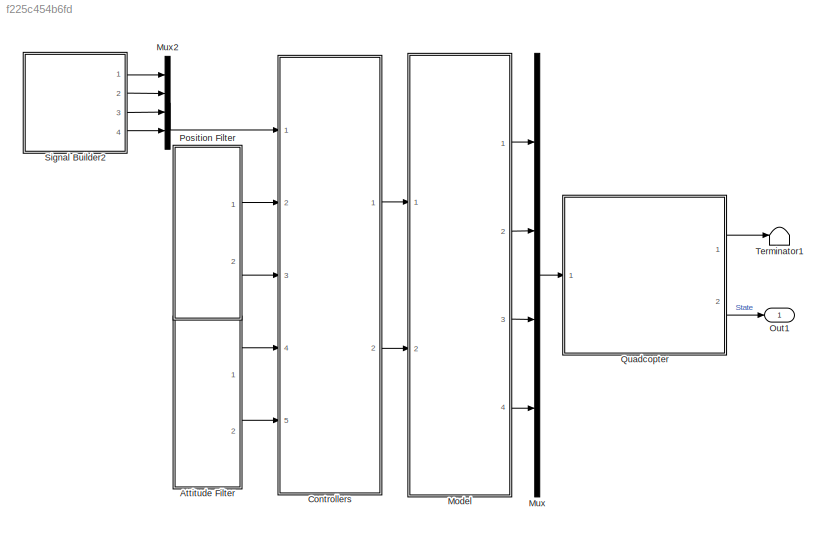
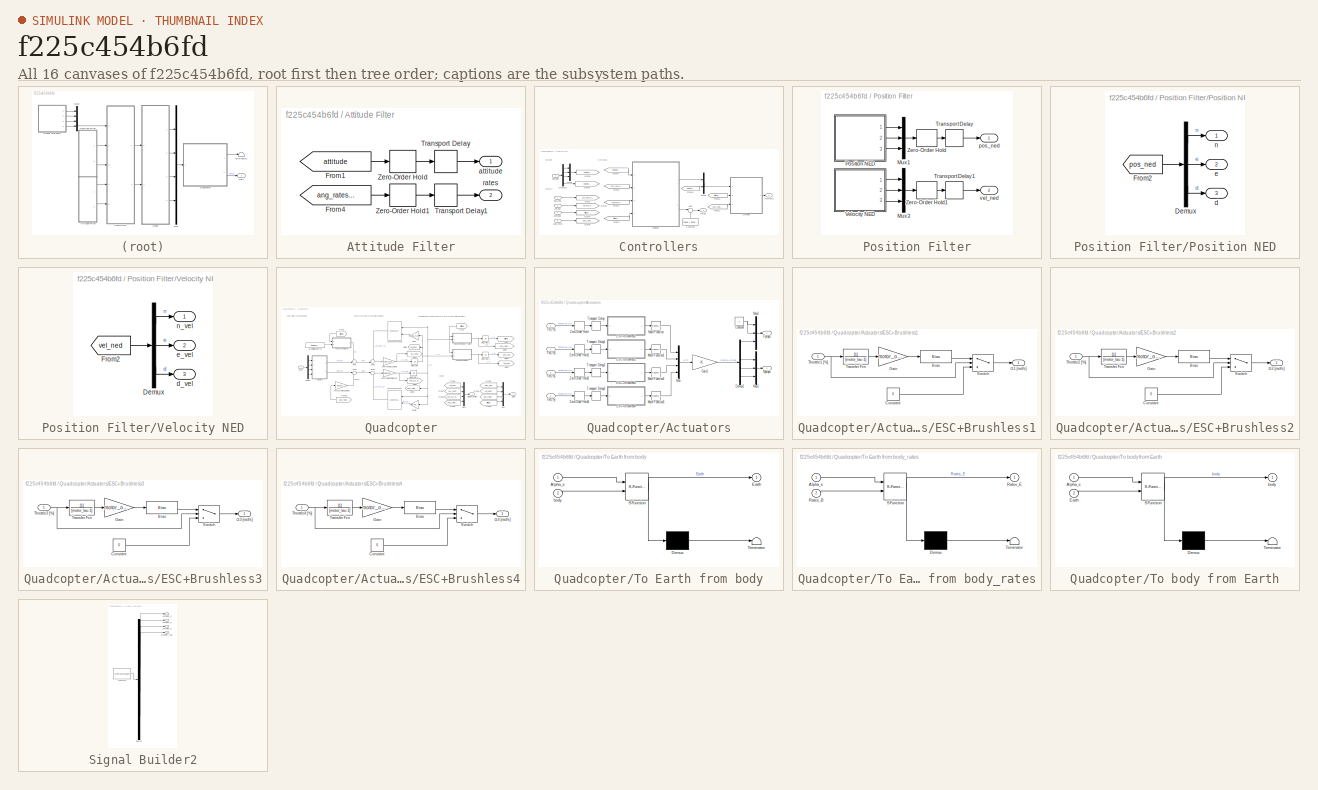
[diagram: thumbnail index - all 16 canvases of the model, root first then tree order]
MODEL slx_f225c454b6fd
KIND model
CONFIG AbsTol = auto
CONFIG EnableMultiTasking = on
CONFIG FixedStep = auto
CONFIG InitFcn = Parameters_quadrotor
CONFIG MaxStep = auto
CONFIG MinStep = auto
CONFIG RelTol = 1e-3
CONFIG SampleTimeConstraint = Unconstrained
CONFIG Solver = VariableStepAuto
CONFIG SolverName = VariableStepAuto
CONFIG StartTime = 0.0
CONFIG StopTime = simulation_time
BLOCK [SubSystem] Attitude Filter
  Ports = [0, 2]
  RequestExecContextInheritance = off
  Variant = off
BLOCK [From] Attitude Filter/From1
  GotoTag = attitude
  TagVisibility = global
BLOCK [From] Attitude Filter/From4
  GotoTag = ang_rates_body
  TagVisibility = global
BLOCK [TransportDelay] Attitude Filter/Transport Delay
  DelayTime = delay_attitude * sample_time
  Ports = [1, 1]
BLOCK [TransportDelay] Attitude Filter/Transport Delay1
  DelayTime = delay_attitude * sample_time
  Ports = [1, 1]
BLOCK [ZeroOrderHold] Attitude Filter/Zero-Order Hold
  SampleTime = sample_time
BLOCK [ZeroOrderHold] Attitude Filter/Zero-Order Hold1
  SampleTime = sample_time
BLOCK [Outport] Attitude Filter/attitude
  IconDisplay = Port number
  PortDimensions = 3
BLOCK [Outport] Attitude Filter/rates
  IconDisplay = Port number
  Port = 2
  PortDimensions = 3
BLOCK [SubSystem] Controllers
  Ports = [5, 2]
  RequestExecContextInheritance = off
  Variant = off
BLOCK [ModelReference] Controllers/Attitude
  ModelNameDialog = Attitude.slx
  ModelReferenceVersion = 1.162
  Ports = [3, 1]
  Variant = off
BLOCK [Constant] Controllers/Constant
  Value = mass * gravity
BLOCK [Demux] Controllers/Demux1
  DisplayOption = bar
  Ports = [1, 4]
BLOCK [From] Controllers/From1
  GotoTag = ang_rates_est
BLOCK [From] Controllers/From2
  GotoTag = attitude_est
BLOCK [From] Controllers/From3
  GotoTag = attitude_est
BLOCK [From] Controllers/From4
  GotoTag = vel_ned_est
BLOCK [From] Controllers/From5
  GotoTag = pos_ned_est
BLOCK [From] Controllers/From8
  GotoTag = setpoint_yaw
BLOCK [From] Controllers/From9
  GotoTag = setpoint_pos_ned
BLOCK [Goto] Controllers/Goto
  GotoTag = pos_ned_est
BLOCK [Goto] Controllers/Goto1
  GotoTag = vel_ned_est
BLOCK [Goto] Controllers/Goto4
  GotoTag = attitude_est
BLOCK [Goto] Controllers/Goto5
  GotoTag = ang_rates_est
BLOCK [Goto] Controllers/Goto6
  GotoTag = setpoint_pos_ned
BLOCK [Goto] Controllers/Goto7
  GotoTag = setpoint_yaw
BLOCK [Mux] Controllers/Mux1
  DisplayOption = bar
  Inputs = 3
  Ports = [3, 1]
BLOCK [Mux] Controllers/Mux8
  DisplayOption = bar
  Inputs = 2
  Ports = [2, 1]
BLOCK [ModelReference] Controllers/Position
  ModelNameDialog = Position.slx
  ModelReferenceVersion = 1.303
  Ports = [4, 2]
  Variant = off
BLOCK [Sum] Controllers/Sum
  IconShape = round
  InputSameDT = off
  Inputs = |+-
  OutDataTypeStr = Inherit: Inherit via internal rule
  Ports = [2, 1]
  SaturateOnIntegerOverflow = off
BLOCK [Inport] Controllers/ang_rates
  IconDisplay = Port number
  Port = 5
  PortDimensions = 3
BLOCK [Inport] Controllers/attitude
  IconDisplay = Port number
  Port = 4
  PortDimensions = 3
BLOCK [Outport] Controllers/moments
  IconDisplay = Port number
  Port = 2
  PortDimensions = 3
BLOCK [Inport] Controllers/pos_ned
  IconDisplay = Port number
  Port = 2
  PortDimensions = 3
BLOCK [Inport] Controllers/setpoint
  IconDisplay = Port number
  PortDimensions = 4
BLOCK [Outport] Controllers/thrust
  IconDisplay = Port number
BLOCK [Inport] Controllers/vel_ned
  IconDisplay = Port number
  Port = 3
  PortDimensions = 3
BLOCK [ModelReference] Model
  ModelNameDialog = Mixer.slx
  ModelReferenceVersion = 1.35
  Ports = [2, 4]
  Variant = off
BLOCK [Mux] Mux
  DisplayOption = bar
  Ports = [4, 1]
BLOCK [Mux] Mux2
  DisplayOption = bar
  Ports = [4, 1]
BLOCK [Outport] Out1
  IconDisplay = Port number
BLOCK [SubSystem] Position Filter
  Ports = [0, 2]
  RequestExecContextInheritance = off
  Variant = off
BLOCK [Mux] Position Filter/Mux1
  DisplayOption = bar
  Inputs = 3
  Ports = [3, 1]
BLOCK [Mux] Position Filter/Mux3
  DisplayOption = bar
  Inputs = 3
  Ports = [3, 1]
BLOCK [SubSystem] Position Filter/Position NED
  Ports = [0, 3]
  RequestExecContextInheritance = off
  Variant = off
BLOCK [Demux] Position Filter/Position NED/Demux
  DisplayOption = bar
  Outputs = 3
  Ports = [1, 3]
BLOCK [From] Position Filter/Position NED/From2
  GotoTag = pos_ned
  TagVisibility = global
BLOCK [Outport] Position Filter/Position NED/d
  IconDisplay = Port number
  Port = 3
BLOCK [Outport] Position Filter/Position NED/e
  IconDisplay = Port number
  Port = 2
BLOCK [Outport] Position Filter/Position NED/n
  IconDisplay = Port number
BLOCK [TransportDelay] Position Filter/Transport Delay
  DelayTime = delay_position * sample_time
  Ports = [1, 1]
BLOCK [TransportDelay] Position Filter/Transport Delay1
  DelayTime = delay_position * sample_time
  Ports = [1, 1]
BLOCK [SubSystem] Position Filter/Velocity NED
  Ports = [0, 3]
  RequestExecContextInheritance = off
  Variant = off
BLOCK [Demux] Position Filter/Velocity NED/Demux
  DisplayOption = bar
  Outputs = 3
  Ports = [1, 3]
BLOCK [From] Position Filter/Velocity NED/From2
  GotoTag = vel_ned
  TagVisibility = global
BLOCK [Outport] Position Filter/Velocity NED/d_vel
  IconDisplay = Port number
  Port = 3
BLOCK [Outport] Position Filter/Velocity NED/e_vel
  IconDisplay = Port number
  Port = 2
BLOCK [Outport] Position Filter/Velocity NED/n_vel
  IconDisplay = Port number
BLOCK [ZeroOrderHold] Position Filter/Zero-Order Hold
  SampleTime = sample_time
BLOCK [ZeroOrderHold] Position Filter/Zero-Order Hold1
  SampleTime = sample_time
BLOCK [Outport] Position Filter/pos_ned
  IconDisplay = Port number
  PortDimensions = 3
BLOCK [Outport] Position Filter/vel_ned
  IconDisplay = Port number
  Port = 2
  PortDimensions = 3
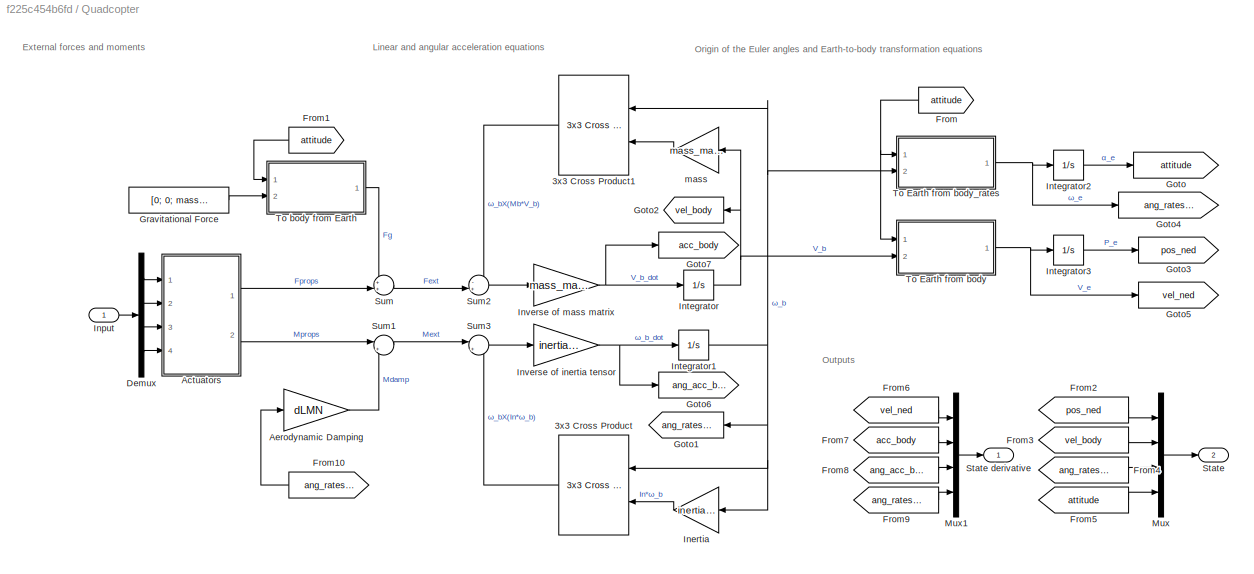
BLOCK [SubSystem] Quadcopter
  Ports = [1, 2]
  RequestExecContextInheritance = off
  Variant = off
BLOCK [Reference] Quadcopter/3x3 Cross Product  REF=aerolibutil/3x3 Cross Product
  Ports = [2, 1]
  SourceBlock = aerolibutil/3x3 Cross Product
  SourceType = CrossProduct
BLOCK [Reference] Quadcopter/3x3 Cross Product1  REF=aerolibutil/3x3 Cross Product
  Ports = [2, 1]
  SourceBlock = aerolibutil/3x3 Cross Product
  SourceType = CrossProduct
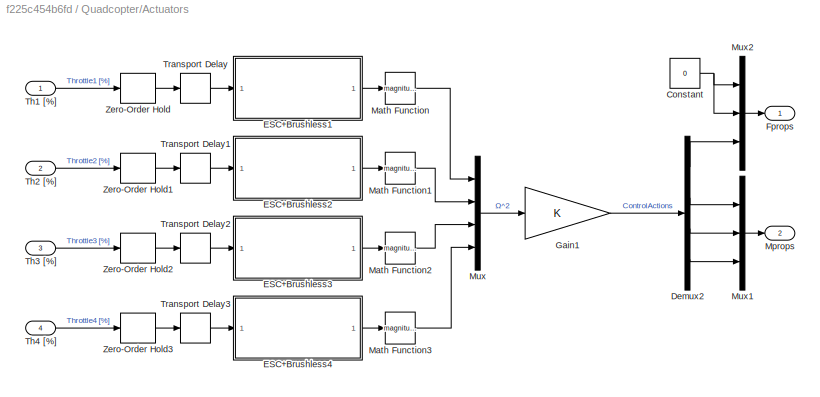
BLOCK [SubSystem] Quadcopter/Actuators
  Ports = [4, 2]
  RequestExecContextInheritance = off
  Variant = off
BLOCK [Constant] Quadcopter/Actuators/Constant
  Value = 0
BLOCK [Demux] Quadcopter/Actuators/Demux2
  DisplayOption = bar
  Ports = [1, 4]
BLOCK [SubSystem] Quadcopter/Actuators/ESC+Brushless1
  Ports = [1, 1]
  RequestExecContextInheritance = off
  Variant = off
BLOCK [Bias] Quadcopter/Actuators/ESC+Brushless1/Bias
  Bias = motor_ome_vs_throttle(2)
  SaturateOnIntegerOverflow = off
BLOCK [Constant] Quadcopter/Actuators/ESC+Brushless1/Constant
  Value = 0
BLOCK [Gain] Quadcopter/Actuators/ESC+Brushless1/Gain
  Gain = motor_ome_vs_throttle(1)
  OutDataTypeStr = Inherit: Inherit via internal rule
  ParamDataTypeStr = Inherit: Inherit via internal rule
  SaturateOnIntegerOverflow = off
BLOCK [Switch] Quadcopter/Actuators/ESC+Brushless1/Switch
  Criteria = u2 > Threshold
  InputSameDT = off
  SaturateOnIntegerOverflow = off
BLOCK [Inport] Quadcopter/Actuators/ESC+Brushless1/Throttle1 [%]
  IconDisplay = Port number
BLOCK [TransferFcn] Quadcopter/Actuators/ESC+Brushless1/Transfer Fcn
  Denominator = [motor_tau 1]
BLOCK [Outport] Quadcopter/Actuators/ESC+Brushless1/Ω1 [rad//s]
  IconDisplay = Port number
BLOCK [SubSystem] Quadcopter/Actuators/ESC+Brushless2
  Ports = [1, 1]
  RequestExecContextInheritance = off
  Variant = off
BLOCK [Bias] Quadcopter/Actuators/ESC+Brushless2/Bias
  Bias = motor_ome_vs_throttle(2)
  SaturateOnIntegerOverflow = off
BLOCK [Constant] Quadcopter/Actuators/ESC+Brushless2/Constant
  Value = 0
BLOCK [Gain] Quadcopter/Actuators/ESC+Brushless2/Gain
  Gain = motor_ome_vs_throttle(1)
  OutDataTypeStr = Inherit: Inherit via internal rule
  ParamDataTypeStr = Inherit: Inherit via internal rule
  SaturateOnIntegerOverflow = off
BLOCK [Switch] Quadcopter/Actuators/ESC+Brushless2/Switch
  Criteria = u2 > Threshold
  InputSameDT = off
  SaturateOnIntegerOverflow = off
BLOCK [Inport] Quadcopter/Actuators/ESC+Brushless2/Throttle2 [%]
  IconDisplay = Port number
BLOCK [TransferFcn] Quadcopter/Actuators/ESC+Brushless2/Transfer Fcn
  Denominator = [motor_tau 1]
BLOCK [Outport] Quadcopter/Actuators/ESC+Brushless2/Ω2 [rad//s]
  IconDisplay = Port number
BLOCK [SubSystem] Quadcopter/Actuators/ESC+Brushless3
  Ports = [1, 1]
  RequestExecContextInheritance = off
  Variant = off
BLOCK [Bias] Quadcopter/Actuators/ESC+Brushless3/Bias
  Bias = motor_ome_vs_throttle(2)
  SaturateOnIntegerOverflow = off
BLOCK [Constant] Quadcopter/Actuators/ESC+Brushless3/Constant
  Value = 0
BLOCK [Gain] Quadcopter/Actuators/ESC+Brushless3/Gain
  Gain = motor_ome_vs_throttle(1)
  OutDataTypeStr = Inherit: Inherit via internal rule
  ParamDataTypeStr = Inherit: Inherit via internal rule
  SaturateOnIntegerOverflow = off
BLOCK [Switch] Quadcopter/Actuators/ESC+Brushless3/Switch
  Criteria = u2 > Threshold
  InputSameDT = off
  SaturateOnIntegerOverflow = off
BLOCK [Inport] Quadcopter/Actuators/ESC+Brushless3/Throttle3 [%]
  IconDisplay = Port number
BLOCK [TransferFcn] Quadcopter/Actuators/ESC+Brushless3/Transfer Fcn
  Denominator = [motor_tau 1]
BLOCK [Outport] Quadcopter/Actuators/ESC+Brushless3/Ω3 [rad//s]
  IconDisplay = Port number
BLOCK [SubSystem] Quadcopter/Actuators/ESC+Brushless4
  Ports = [1, 1]
  RequestExecContextInheritance = off
  Variant = off
BLOCK [Bias] Quadcopter/Actuators/ESC+Brushless4/Bias
  Bias = motor_ome_vs_throttle(2)
  SaturateOnIntegerOverflow = off
BLOCK [Constant] Quadcopter/Actuators/ESC+Brushless4/Constant
  Value = 0
BLOCK [Gain] Quadcopter/Actuators/ESC+Brushless4/Gain
  Gain = motor_ome_vs_throttle(1)
  OutDataTypeStr = Inherit: Inherit via internal rule
  ParamDataTypeStr = Inherit: Inherit via internal rule
  SaturateOnIntegerOverflow = off
BLOCK [Switch] Quadcopter/Actuators/ESC+Brushless4/Switch
  Criteria = u2 > Threshold
  InputSameDT = off
  SaturateOnIntegerOverflow = off
BLOCK [Inport] Quadcopter/Actuators/ESC+Brushless4/Throttle4 [%]
  IconDisplay = Port number
BLOCK [TransferFcn] Quadcopter/Actuators/ESC+Brushless4/Transfer Fcn
  Denominator = [motor_tau 1]
BLOCK [Outport] Quadcopter/Actuators/ESC+Brushless4/Ω4 [rad//s]
  IconDisplay = Port number
BLOCK [Outport] Quadcopter/Actuators/Fprops
  IconDisplay = Port number
BLOCK [Gain] Quadcopter/Actuators/Gain1
  Gain = K
  Multiplication = Matrix(K*u)
  OutDataTypeStr = Inherit: Inherit via internal rule
  ParamDataTypeStr = Inherit: Inherit via internal rule
  SaturateOnIntegerOverflow = off
BLOCK [Math] Quadcopter/Actuators/Math Function
  Operator = magnitude^2
  Ports = [1, 1]
BLOCK [Math] Quadcopter/Actuators/Math Function1
  Operator = magnitude^2
  Ports = [1, 1]
BLOCK [Math] Quadcopter/Actuators/Math Function2
  Operator = magnitude^2
  Ports = [1, 1]
BLOCK [Math] Quadcopter/Actuators/Math Function3
  Operator = magnitude^2
  Ports = [1, 1]
BLOCK [Outport] Quadcopter/Actuators/Mprops
  IconDisplay = Port number
  Port = 2
BLOCK [Mux] Quadcopter/Actuators/Mux
  DisplayOption = bar
  Ports = [4, 1]
BLOCK [Mux] Quadcopter/Actuators/Mux1
  DisplayOption = bar
  Inputs = 3
  Ports = [3, 1]
BLOCK [Mux] Quadcopter/Actuators/Mux2
  DisplayOption = bar
  Inputs = 3
  Ports = [3, 1]
BLOCK [Inport] Quadcopter/Actuators/Th1 [%]
  IconDisplay = Port number
BLOCK [Inport] Quadcopter/Actuators/Th2 [%]
  IconDisplay = Port number
  Port = 2
BLOCK [Inport] Quadcopter/Actuators/Th3 [%]
  IconDisplay = Port number
  Port = 3
BLOCK [Inport] Quadcopter/Actuators/Th4 [%]
  IconDisplay = Port number
  Port = 4
BLOCK [TransportDelay] Quadcopter/Actuators/Transport Delay
  DelayTime = delay_mixer * sample_time
  Ports = [1, 1]
BLOCK [TransportDelay] Quadcopter/Actuators/Transport Delay1
  DelayTime = delay_mixer * sample_time
  Ports = [1, 1]
BLOCK [TransportDelay] Quadcopter/Actuators/Transport Delay2
  DelayTime = delay_mixer * sample_time
  Ports = [1, 1]
BLOCK [TransportDelay] Quadcopter/Actuators/Transport Delay3
  DelayTime = delay_mixer * sample_time
  Ports = [1, 1]
BLOCK [ZeroOrderHold] Quadcopter/Actuators/Zero-Order Hold
  SampleTime = sample_time
BLOCK [ZeroOrderHold] Quadcopter/Actuators/Zero-Order Hold1
  SampleTime = sample_time
BLOCK [ZeroOrderHold] Quadcopter/Actuators/Zero-Order Hold2
  SampleTime = sample_time
BLOCK [ZeroOrderHold] Quadcopter/Actuators/Zero-Order Hold3
  SampleTime = sample_time
BLOCK [Gain] Quadcopter/Aerodynamic Damping
  Gain = dLMN
  Multiplication = Matrix(K*u)
  OutDataTypeStr = Inherit: Inherit via internal rule
  ParamDataTypeStr = Inherit: Inherit via internal rule
  SaturateOnIntegerOverflow = off
BLOCK [Demux] Quadcopter/Demux
  DisplayOption = bar
  Ports = [1, 4]
BLOCK [From] Quadcopter/From
  GotoTag = attitude
  TagVisibility = global
BLOCK [From] Quadcopter/From1
  GotoTag = attitude
  TagVisibility = global
BLOCK [From] Quadcopter/From10
  GotoTag = ang_rates_body
  TagVisibility = global
BLOCK [From] Quadcopter/From2
  GotoTag = pos_ned
  TagVisibility = global
BLOCK [From] Quadcopter/From3
  GotoTag = vel_body
  TagVisibility = global
BLOCK [From] Quadcopter/From4
  GotoTag = ang_rates_body
  TagVisibility = global
BLOCK [From] Quadcopter/From5
  GotoTag = attitude
  TagVisibility = global
BLOCK [From] Quadcopter/From6
  GotoTag = vel_ned
  TagVisibility = global
BLOCK [From] Quadcopter/From7
  GotoTag = acc_body
  TagVisibility = global
BLOCK [From] Quadcopter/From8
  GotoTag = ang_acc_body
  TagVisibility = global
BLOCK [From] Quadcopter/From9
  GotoTag = ang_rates_ned
  TagVisibility = global
BLOCK [Goto] Quadcopter/Goto
  GotoTag = attitude
  TagVisibility = global
BLOCK [Goto] Quadcopter/Goto1
  GotoTag = ang_rates_body
  TagVisibility = global
BLOCK [Goto] Quadcopter/Goto2
  GotoTag = vel_body
  TagVisibility = global
BLOCK [Goto] Quadcopter/Goto3
  GotoTag = pos_ned
  TagVisibility = global
BLOCK [Goto] Quadcopter/Goto4
  GotoTag = ang_rates_ned
  TagVisibility = global
BLOCK [Goto] Quadcopter/Goto5
  GotoTag = vel_ned
  TagVisibility = global
BLOCK [Goto] Quadcopter/Goto6
  GotoTag = ang_acc_body
  TagVisibility = global
BLOCK [Goto] Quadcopter/Goto7
  GotoTag = acc_body
  TagVisibility = global
BLOCK [Constant] Quadcopter/Gravitational Force
  Value = [0; 0; mass*gravity]
BLOCK [Gain] Quadcopter/Inertia
  Gain = inertia_tensor
  Multiplication = Matrix(K*u)
  OutDataTypeStr = Inherit: Inherit via internal rule
  ParamDataTypeStr = Inherit: Inherit via internal rule
  SaturateOnIntegerOverflow = off
BLOCK [Inport] Quadcopter/Input
  IconDisplay = Port number
BLOCK [Integrator] Quadcopter/Integrator
  InitialCondition = [0; 0; 0]
  Ports = [1, 1]
BLOCK [Integrator] Quadcopter/Integrator1
  InitialCondition = [0; 0; 0]
  Ports = [1, 1]
BLOCK [Integrator] Quadcopter/Integrator2
  InitialCondition = [0; 0; 0]
  Ports = [1, 1]
BLOCK [Integrator] Quadcopter/Integrator3
  InitialCondition = [0; 0; 0]
  Ports = [1, 1]
BLOCK [Gain] Quadcopter/Inverse of inertia tensor
  Gain = inertia_tensor_inv
  Multiplication = Matrix(K*u)
  OutDataTypeStr = Inherit: Inherit via internal rule
  ParamDataTypeStr = Inherit: Inherit via internal rule
  SaturateOnIntegerOverflow = off
BLOCK [Gain] Quadcopter/Inverse of mass matrix
  Gain = mass_matrix_inv
  Multiplication = Matrix(K*u)
  OutDataTypeStr = Inherit: Inherit via internal rule
  ParamDataTypeStr = Inherit: Inherit via internal rule
  SaturateOnIntegerOverflow = off
BLOCK [Mux] Quadcopter/Mux
  DisplayOption = bar
  Ports = [4, 1]
BLOCK [Mux] Quadcopter/Mux1
  DisplayOption = bar
  Ports = [4, 1]
BLOCK [Outport] Quadcopter/State
  IconDisplay = Port number
  Port = 2
BLOCK [Outport] Quadcopter/State derivative
  IconDisplay = Port number
BLOCK [Sum] Quadcopter/Sum
  IconShape = round
  InputSameDT = off
  Inputs = ++|
  OutDataTypeStr = Inherit: Inherit via internal rule
  Ports = [2, 1]
  SaturateOnIntegerOverflow = off
BLOCK [Sum] Quadcopter/Sum1
  IconShape = round
  InputSameDT = off
  Inputs = |++
  OutDataTypeStr = Inherit: Inherit via internal rule
  Ports = [2, 1]
  SaturateOnIntegerOverflow = off
BLOCK [Sum] Quadcopter/Sum2
  IconShape = round
  InputSameDT = off
  Inputs = -+|
  OutDataTypeStr = Inherit: Inherit via internal rule
  Ports = [2, 1]
  SaturateOnIntegerOverflow = off
BLOCK [Sum] Quadcopter/Sum3
  IconShape = round
  InputSameDT = off
  Inputs = |+-
  OutDataTypeStr = Inherit: Inherit via internal rule
  Ports = [2, 1]
  SaturateOnIntegerOverflow = off
BLOCK [SubSystem] Quadcopter/To Earth from body
  ErrorFcn = Stateflow.Translate.translate
  PermitHierarchicalResolution = ExplicitOnly
  Ports = [2, 1]
  RequestExecContextInheritance = off
  SFBlockType = MATLAB Function
  TreatAsAtomicUnit = on
  Variant = off
BLOCK [Demux] Quadcopter/To Earth from body/ Demux 
  Outputs = 1
  Ports = [1, 1]
BLOCK [S-Function] Quadcopter/To Earth from body/ SFunction 
  EnableBusSupport = on
  FunctionName = sf_sfun
  PortCounts = [2 2]
  Ports = [2, 2]
  SFcnIsStateOwnerBlock = off
  SFunctionDeploymentMode = off
  Tag = Stateflow S-Function Simulator 2
BLOCK [Terminator] Quadcopter/To Earth from body/ Terminator 
BLOCK [Inport] Quadcopter/To Earth from body/Alpha_e
  IconDisplay = Port number
BLOCK [Outport] Quadcopter/To Earth from body/Earth
  IconDisplay = Port number
BLOCK [Inport] Quadcopter/To Earth from body/body
  IconDisplay = Port number
  Port = 2
BLOCK [SubSystem] Quadcopter/To Earth from body_rates
  ErrorFcn = Stateflow.Translate.translate
  PermitHierarchicalResolution = ExplicitOnly
  Ports = [2, 1]
  RequestExecContextInheritance = off
  SFBlockType = MATLAB Function
  TreatAsAtomicUnit = on
  Variant = off
BLOCK [Demux] Quadcopter/To Earth from body_rates/ Demux 
  Outputs = 1
  Ports = [1, 1]
BLOCK [S-Function] Quadcopter/To Earth from body_rates/ SFunction 
  EnableBusSupport = on
  FunctionName = sf_sfun
  PortCounts = [2 2]
  Ports = [2, 2]
  SFcnIsStateOwnerBlock = off
  SFunctionDeploymentMode = off
  Tag = Stateflow S-Function Simulator 3
BLOCK [Terminator] Quadcopter/To Earth from body_rates/ Terminator 
BLOCK [Inport] Quadcopter/To Earth from body_rates/Alpha_e
  IconDisplay = Port number
BLOCK [Inport] Quadcopter/To Earth from body_rates/Rates_B
  IconDisplay = Port number
  Port = 2
BLOCK [Outport] Quadcopter/To Earth from body_rates/Rates_E
  IconDisplay = Port number
BLOCK [SubSystem] Quadcopter/To body from Earth
  ErrorFcn = Stateflow.Translate.translate
  PermitHierarchicalResolution = ExplicitOnly
  Ports = [2, 1]
  RequestExecContextInheritance = off
  SFBlockType = MATLAB Function
  TreatAsAtomicUnit = on
  Variant = off
BLOCK [Demux] Quadcopter/To body from Earth/ Demux 
  Outputs = 1
  Ports = [1, 1]
BLOCK [S-Function] Quadcopter/To body from Earth/ SFunction 
  EnableBusSupport = on
  FunctionName = sf_sfun
  PortCounts = [2 2]
  Ports = [2, 2]
  SFcnIsStateOwnerBlock = off
  SFunctionDeploymentMode = off
  Tag = Stateflow S-Function Simulator 1
BLOCK [Terminator] Quadcopter/To body from Earth/ Terminator 
BLOCK [Inport] Quadcopter/To body from Earth/Alpha_e
  IconDisplay = Port number
BLOCK [Inport] Quadcopter/To body from Earth/Earth
  IconDisplay = Port number
  Port = 2
BLOCK [Outport] Quadcopter/To body from Earth/body
  IconDisplay = Port number
BLOCK [Gain] Quadcopter/mass
  Gain = mass_matrix
  Multiplication = Matrix(K*u)
  OutDataTypeStr = Inherit: Inherit via internal rule
  ParamDataTypeStr = Inherit: Inherit via internal rule
  SaturateOnIntegerOverflow = off
BLOCK [SubSystem] Signal Builder2
  ClipboardFcn = sigbuilder_block('clipboard');
  CloseFcn = sigbuilder_block('close');
  ContinueFcn = sigbuilder_block('continue');
  CopyFcn = sigbuilder_block('copy');
  DeleteFcn = sigbuilder_block('delete');
  LoadFcn = sigbuilder_block('load');
  MaskHideContents = on
  ModelCloseFcn = sigbuilder_block('modelClose');
  NameChangeFcn = sigbuilder_block('namechange');
  OpenFcn = sigbuilder_block('open',[0 30 1024.5 488.25 ]);
  PauseFcn = sigbuilder_block('pause');
  Ports = [0, 4]
  PreSaveFcn = sigbuilder_block('preSave');
  RequestExecContextInheritance = off
  StartFcn = sigbuilder_block('start');
  StopFcn = sigbuilder_block('stop');
  Tag = STV Subsys
  Variant = off
BLOCK [Demux] Signal Builder2/Demux
  Ports = [1, 4]
  Tag = STV Demux
BLOCK [FromWorkspace] Signal Builder2/FromWs
  SampleTime = 0
  Tag = STV FromWs
  VariableName = tuvar
  ZeroCross = on
BLOCK [Outport] Signal Builder2/setpoint_d
  IconDisplay = Port number
  Port = 3
  Tag = STV Outport
BLOCK [Outport] Signal Builder2/setpoint_e
  IconDisplay = Port number
  Port = 2
  Tag = STV Outport
BLOCK [Outport] Signal Builder2/setpoint_n
  IconDisplay = Port number
  Tag = STV Outport
BLOCK [Outport] Signal Builder2/setpoint_yaw 
  IconDisplay = Port number
  Port = 4
  Tag = STV Outport
BLOCK [Terminator] Terminator1
ANNOTATION Controllers: Controllers
ANNOTATION Controllers: Sensors
ANNOTATION Controllers: Setpoint
ANNOTATION Quadcopter: External forces and moments
ANNOTATION Quadcopter: Linear and angular acceleration equations
ANNOTATION Quadcopter: Origin of the Euler angles and Earth-to-body transformation equations
ANNOTATION Quadcopter: Outputs
LINE Attitude Filter/From1:1 -> Attitude Filter/Zero-Order Hold:1
LINE Attitude Filter/From4:1 -> Attitude Filter/Zero-Order Hold1:1
LINE Attitude Filter/Transport Delay1:1 -> Attitude Filter/rates:1
LINE Attitude Filter/Transport Delay:1 -> Attitude Filter/attitude:1
LINE Attitude Filter/Zero-Order Hold1:1 -> Attitude Filter/Transport Delay1:1
LINE Attitude Filter/Zero-Order Hold:1 -> Attitude Filter/Transport Delay:1
LINE Attitude Filter:1 -> Controllers:4
LINE Attitude Filter:2 -> Controllers:5
LINE Controllers/Attitude:1 -> Controllers/moments:1
LINE Controllers/Constant:1 -> Controllers/Sum:2
LINE Controllers/Demux1:1 -> Controllers/Mux1:1
LINE Controllers/Demux1:2 -> Controllers/Mux1:2
LINE Controllers/Demux1:3 -> Controllers/Mux1:3
LINE Controllers/Demux1:4 -> Controllers/Goto7:1
LINE Controllers/From1:1 -> Controllers/Attitude:3
LINE Controllers/From2:1 -> Controllers/Attitude:2
LINE Controllers/From3:1 -> Controllers/Position:4
LINE Controllers/From4:1 -> Controllers/Position:3
LINE Controllers/From5:1 -> Controllers/Position:2
LINE Controllers/From8:1 -> Controllers/Mux8:2
LINE Controllers/From9:1 -> Controllers/Position:1
LINE Controllers/Mux1:1 -> Controllers/Goto6:1
LINE Controllers/Mux8:1 -> Controllers/Attitude:1
LINE Controllers/Position:1 -> Controllers/Mux8:1
LINE Controllers/Position:2 -> Controllers/Sum:1
LINE Controllers/Sum:1 -> Controllers/thrust:1
LINE Controllers/ang_rates:1 -> Controllers/Goto5:1
LINE Controllers/attitude:1 -> Controllers/Goto4:1
LINE Controllers/pos_ned:1 -> Controllers/Goto:1
LINE Controllers/setpoint:1 -> Controllers/Demux1:1
LINE Controllers/vel_ned:1 -> Controllers/Goto1:1
LINE Controllers:1 -> Model:1
LINE Controllers:2 -> Model:2
LINE Model:1 -> Mux:1
LINE Model:2 -> Mux:2
LINE Model:3 -> Mux:3
LINE Model:4 -> Mux:4
LINE Mux2:1 -> Controllers:1
LINE Mux:1 -> Quadcopter:1
LINE Position Filter/Mux1:1 -> Position Filter/Zero-Order Hold:1
LINE Position Filter/Mux3:1 -> Position Filter/Zero-Order Hold1:1
LINE Position Filter/Position NED/Demux:1 -> Position Filter/Position NED/n:1
LINE Position Filter/Position NED/Demux:2 -> Position Filter/Position NED/e:1
LINE Position Filter/Position NED/Demux:3 -> Position Filter/Position NED/d:1
LINE Position Filter/Position NED/From2:1 -> Position Filter/Position NED/Demux:1
LINE Position Filter/Position NED:1 -> Position Filter/Mux1:1
LINE Position Filter/Position NED:2 -> Position Filter/Mux1:2
LINE Position Filter/Position NED:3 -> Position Filter/Mux1:3
LINE Position Filter/Transport Delay1:1 -> Position Filter/vel_ned:1
LINE Position Filter/Transport Delay:1 -> Position Filter/pos_ned:1
LINE Position Filter/Velocity NED/Demux:1 -> Position Filter/Velocity NED/n_vel:1
LINE Position Filter/Velocity NED/Demux:2 -> Position Filter/Velocity NED/e_vel:1
LINE Position Filter/Velocity NED/Demux:3 -> Position Filter/Velocity NED/d_vel:1
LINE Position Filter/Velocity NED/From2:1 -> Position Filter/Velocity NED/Demux:1
LINE Position Filter/Velocity NED:1 -> Position Filter/Mux3:1
LINE Position Filter/Velocity NED:2 -> Position Filter/Mux3:2
LINE Position Filter/Velocity NED:3 -> Position Filter/Mux3:3
LINE Position Filter/Zero-Order Hold1:1 -> Position Filter/Transport Delay1:1
LINE Position Filter/Zero-Order Hold:1 -> Position Filter/Transport Delay:1
LINE Position Filter:1 -> Controllers:2
LINE Position Filter:2 -> Controllers:3
LINE Quadcopter/3x3 Cross Product1:1 -> Quadcopter/Sum2:1
LINE Quadcopter/3x3 Cross Product:1 -> Quadcopter/Sum3:2
NET Quadcopter/Actuators/Constant:1 -> Quadcopter/Actuators/Mux2:1, Quadcopter/Actuators/Mux2:2
LINE Quadcopter/Actuators/Demux2:1 -> Quadcopter/Actuators/Mux2:3
LINE Quadcopter/Actuators/Demux2:2 -> Quadcopter/Actuators/Mux1:1
LINE Quadcopter/Actuators/Demux2:3 -> Quadcopter/Actuators/Mux1:2
LINE Quadcopter/Actuators/Demux2:4 -> Quadcopter/Actuators/Mux1:3
LINE Quadcopter/Actuators/ESC+Brushless1/Bias:1 -> Quadcopter/Actuators/ESC+Brushless1/Switch:1
LINE Quadcopter/Actuators/ESC+Brushless1/Constant:1 -> Quadcopter/Actuators/ESC+Brushless1/Switch:3
LINE Quadcopter/Actuators/ESC+Brushless1/Gain:1 -> Quadcopter/Actuators/ESC+Brushless1/Bias:1
LINE Quadcopter/Actuators/ESC+Brushless1/Switch:1 -> Quadcopter/Actuators/ESC+Brushless1/Ω1 [rad//s]:1
NET Quadcopter/Actuators/ESC+Brushless1/Throttle1 [%]:1 -> Quadcopter/Actuators/ESC+Brushless1/Switch:2, Quadcopter/Actuators/ESC+Brushless1/Transfer Fcn:1
LINE Quadcopter/Actuators/ESC+Brushless1/Transfer Fcn:1 -> Quadcopter/Actuators/ESC+Brushless1/Gain:1
LINE Quadcopter/Actuators/ESC+Brushless1:1 -> Quadcopter/Actuators/Math Function:1
LINE Quadcopter/Actuators/ESC+Brushless2/Bias:1 -> Quadcopter/Actuators/ESC+Brushless2/Switch:1
LINE Quadcopter/Actuators/ESC+Brushless2/Constant:1 -> Quadcopter/Actuators/ESC+Brushless2/Switch:3
LINE Quadcopter/Actuators/ESC+Brushless2/Gain:1 -> Quadcopter/Actuators/ESC+Brushless2/Bias:1
LINE Quadcopter/Actuators/ESC+Brushless2/Switch:1 -> Quadcopter/Actuators/ESC+Brushless2/Ω2 [rad//s]:1
NET Quadcopter/Actuators/ESC+Brushless2/Throttle2 [%]:1 -> Quadcopter/Actuators/ESC+Brushless2/Switch:2, Quadcopter/Actuators/ESC+Brushless2/Transfer Fcn:1
LINE Quadcopter/Actuators/ESC+Brushless2/Transfer Fcn:1 -> Quadcopter/Actuators/ESC+Brushless2/Gain:1
LINE Quadcopter/Actuators/ESC+Brushless2:1 -> Quadcopter/Actuators/Math Function1:1
LINE Quadcopter/Actuators/ESC+Brushless3/Bias:1 -> Quadcopter/Actuators/ESC+Brushless3/Switch:1
LINE Quadcopter/Actuators/ESC+Brushless3/Constant:1 -> Quadcopter/Actuators/ESC+Brushless3/Switch:3
LINE Quadcopter/Actuators/ESC+Brushless3/Gain:1 -> Quadcopter/Actuators/ESC+Brushless3/Bias:1
LINE Quadcopter/Actuators/ESC+Brushless3/Switch:1 -> Quadcopter/Actuators/ESC+Brushless3/Ω3 [rad//s]:1
NET Quadcopter/Actuators/ESC+Brushless3/Throttle3 [%]:1 -> Quadcopter/Actuators/ESC+Brushless3/Switch:2, Quadcopter/Actuators/ESC+Brushless3/Transfer Fcn:1
LINE Quadcopter/Actuators/ESC+Brushless3/Transfer Fcn:1 -> Quadcopter/Actuators/ESC+Brushless3/Gain:1
LINE Quadcopter/Actuators/ESC+Brushless3:1 -> Quadcopter/Actuators/Math Function2:1
LINE Quadcopter/Actuators/ESC+Brushless4/Bias:1 -> Quadcopter/Actuators/ESC+Brushless4/Switch:1
LINE Quadcopter/Actuators/ESC+Brushless4/Constant:1 -> Quadcopter/Actuators/ESC+Brushless4/Switch:3
LINE Quadcopter/Actuators/ESC+Brushless4/Gain:1 -> Quadcopter/Actuators/ESC+Brushless4/Bias:1
LINE Quadcopter/Actuators/ESC+Brushless4/Switch:1 -> Quadcopter/Actuators/ESC+Brushless4/Ω4 [rad//s]:1
NET Quadcopter/Actuators/ESC+Brushless4/Throttle4 [%]:1 -> Quadcopter/Actuators/ESC+Brushless4/Switch:2, Quadcopter/Actuators/ESC+Brushless4/Transfer Fcn:1
LINE Quadcopter/Actuators/ESC+Brushless4/Transfer Fcn:1 -> Quadcopter/Actuators/ESC+Brushless4/Gain:1
LINE Quadcopter/Actuators/ESC+Brushless4:1 -> Quadcopter/Actuators/Math Function3:1
LINE Quadcopter/Actuators/Gain1:1 -> Quadcopter/Actuators/Demux2:1
LINE Quadcopter/Actuators/Math Function1:1 -> Quadcopter/Actuators/Mux:2
LINE Quadcopter/Actuators/Math Function2:1 -> Quadcopter/Actuators/Mux:3
LINE Quadcopter/Actuators/Math Function3:1 -> Quadcopter/Actuators/Mux:4
LINE Quadcopter/Actuators/Math Function:1 -> Quadcopter/Actuators/Mux:1
LINE Quadcopter/Actuators/Mux1:1 -> Quadcopter/Actuators/Mprops:1
LINE Quadcopter/Actuators/Mux2:1 -> Quadcopter/Actuators/Fprops:1
LINE Quadcopter/Actuators/Mux:1 -> Quadcopter/Actuators/Gain1:1
LINE Quadcopter/Actuators/Th1 [%]:1 -> Quadcopter/Actuators/Zero-Order Hold:1
LINE Quadcopter/Actuators/Th2 [%]:1 -> Quadcopter/Actuators/Zero-Order Hold1:1
LINE Quadcopter/Actuators/Th3 [%]:1 -> Quadcopter/Actuators/Zero-Order Hold2:1
LINE Quadcopter/Actuators/Th4 [%]:1 -> Quadcopter/Actuators/Zero-Order Hold3:1
LINE Quadcopter/Actuators/Transport Delay1:1 -> Quadcopter/Actuators/ESC+Brushless2:1
LINE Quadcopter/Actuators/Transport Delay2:1 -> Quadcopter/Actuators/ESC+Brushless3:1
LINE Quadcopter/Actuators/Transport Delay3:1 -> Quadcopter/Actuators/ESC+Brushless4:1
LINE Quadcopter/Actuators/Transport Delay:1 -> Quadcopter/Actuators/ESC+Brushless1:1
LINE Quadcopter/Actuators/Zero-Order Hold1:1 -> Quadcopter/Actuators/Transport Delay1:1
LINE Quadcopter/Actuators/Zero-Order Hold2:1 -> Quadcopter/Actuators/Transport Delay2:1
LINE Quadcopter/Actuators/Zero-Order Hold3:1 -> Quadcopter/Actuators/Transport Delay3:1
LINE Quadcopter/Actuators/Zero-Order Hold:1 -> Quadcopter/Actuators/Transport Delay:1
LINE Quadcopter/Actuators:1 -> Quadcopter/Sum:2
LINE Quadcopter/Actuators:2 -> Quadcopter/Sum1:1
LINE Quadcopter/Aerodynamic Damping:1 -> Quadcopter/Sum1:2
LINE Quadcopter/Demux:1 -> Quadcopter/Actuators:1
LINE Quadcopter/Demux:2 -> Quadcopter/Actuators:2
LINE Quadcopter/Demux:3 -> Quadcopter/Actuators:3
LINE Quadcopter/Demux:4 -> Quadcopter/Actuators:4
LINE Quadcopter/From10:1 -> Quadcopter/Aerodynamic Damping:1
LINE Quadcopter/From1:1 -> Quadcopter/To body from Earth:1
LINE Quadcopter/From2:1 -> Quadcopter/Mux:1
LINE Quadcopter/From3:1 -> Quadcopter/Mux:2
LINE Quadcopter/From4:1 -> Quadcopter/Mux:3
LINE Quadcopter/From5:1 -> Quadcopter/Mux:4
LINE Quadcopter/From6:1 -> Quadcopter/Mux1:1
LINE Quadcopter/From7:1 -> Quadcopter/Mux1:2
LINE Quadcopter/From8:1 -> Quadcopter/Mux1:3
LINE Quadcopter/From9:1 -> Quadcopter/Mux1:4
NET Quadcopter/From:1 -> Quadcopter/To Earth from body:1, Quadcopter/To Earth from body_rates:1
LINE Quadcopter/Gravitational Force:1 -> Quadcopter/To body from Earth:2
LINE Quadcopter/Inertia:1 -> Quadcopter/3x3 Cross Product:2
LINE Quadcopter/Input:1 -> Quadcopter/Demux:1
NET Quadcopter/Integrator1:1 -> Quadcopter/3x3 Cross Product1:1, Quadcopter/3x3 Cross Product:1, Quadcopter/Goto1:1, Quadcopter/Inertia:1, Quadcopter/To Earth from body_rates:2
LINE Quadcopter/Integrator2:1 -> Quadcopter/Goto:1
LINE Quadcopter/Integrator3:1 -> Quadcopter/Goto3:1
NET Quadcopter/Integrator:1 -> Quadcopter/Goto2:1, Quadcopter/To Earth from body:2, Quadcopter/mass:1
NET Quadcopter/Inverse of inertia tensor:1 -> Quadcopter/Goto6:1, Quadcopter/Integrator1:1
NET Quadcopter/Inverse of mass matrix:1 -> Quadcopter/Goto7:1, Quadcopter/Integrator:1
LINE Quadcopter/Mux1:1 -> Quadcopter/State derivative:1
LINE Quadcopter/Mux:1 -> Quadcopter/State:1
LINE Quadcopter/Sum1:1 -> Quadcopter/Sum3:1
LINE Quadcopter/Sum2:1 -> Quadcopter/Inverse of mass matrix:1
LINE Quadcopter/Sum3:1 -> Quadcopter/Inverse of inertia tensor:1
LINE Quadcopter/Sum:1 -> Quadcopter/Sum2:2
NET Quadcopter/To Earth from body:1 -> Quadcopter/Goto5:1, Quadcopter/Integrator3:1
NET Quadcopter/To Earth from body_rates:1 -> Quadcopter/Goto4:1, Quadcopter/Integrator2:1
LINE Quadcopter/To body from Earth:1 -> Quadcopter/Sum:1
LINE Quadcopter/mass:1 -> Quadcopter/3x3 Cross Product1:2
LINE Quadcopter:1 -> Terminator1:1
LINE Quadcopter:2 -> Out1:1
LINE Signal Builder2:1 -> Mux2:1
LINE Signal Builder2:2 -> Mux2:2
LINE Signal Builder2:3 -> Mux2:3
LINE Signal Builder2:4 -> Mux2:4
note: NET lines group one-source signal fan-out (src -> all destinations, sorted); 1:1 wires keep LINE
CHART Quadcopter/To body from Earth states=1 transitions=1
  STATE_LABEL 'eML_blk_kernel()'
  STATE_LABEL 'SCRIPT:\n function body = Tbe(Alpha_e, Earth)\n%#codegen\nphi = Alpha_e(1);\ntheta = Alpha_e(2);\npsi = Alpha_e(3);\n\nSphi = sin(phi);\nCphi = cos(phi);\nStheta = sin(theta);\nCtheta = cos(theta);\nSpsi = sin(psi);\nCpsi = cos(psi);\n\nTBE = [        Ctheta*Cpsi               Ctheta*Spsi          -Stheta    ;\n       Sphi*Stheta*Cpsi-Cphi*Spsi Sphi*Stheta*Spsi+Cphi*Cpsi Sphi*Ctheta ;\n       Cphi*Stheta*Cpsi+Sph...<+67ch>'
CHART Quadcopter/To Earth from body states=1 transitions=1
  STATE_LABEL 'eML_blk_kernel()'
  STATE_LABEL 'SCRIPT:\n function Earth = Tbet(Alpha_e, body)\n%#codegen\nphi = Alpha_e(1);\ntheta = Alpha_e(2);\npsi = Alpha_e(3);\n\nSphi = sin(phi);\nCphi = cos(phi);\nStheta = sin(theta);\nCtheta = cos(theta);\nSpsi = sin(psi);\nCpsi = cos(psi);\n\nTBE = [        Ctheta*Cpsi               Ctheta*Spsi          -Stheta    ;\n       Sphi*Stheta*Cpsi-Cphi*Spsi Sphi*Stheta*Spsi+Cphi*Cpsi Sphi*Ctheta ;\n       Cphi*Stheta*Cpsi+Sp...<+80ch>'
CHART Quadcopter/To Earth from body_rates states=1 transitions=1
  STATE_LABEL 'eML_blk_kernel()'
  STATE_LABEL 'SCRIPT:\n function Rates_E = Einv(Alpha_e, Rates_B)\n%#codegen\nphi = Alpha_e(1);\ntheta = Alpha_e(2);\n\nSphi = sin(phi);\nCphi = cos(phi);\nCtheta = cos(theta);\nTtheta = tan(theta);\n\nEinv = [1   Sphi*Ttheta    Cphi*Ttheta ;\n        0       Cphi          -Sphi    ;\n        0   Sphi/Ctheta    Cphi/Ctheta];\n\nRates_E = Einv* Rates_B;'
